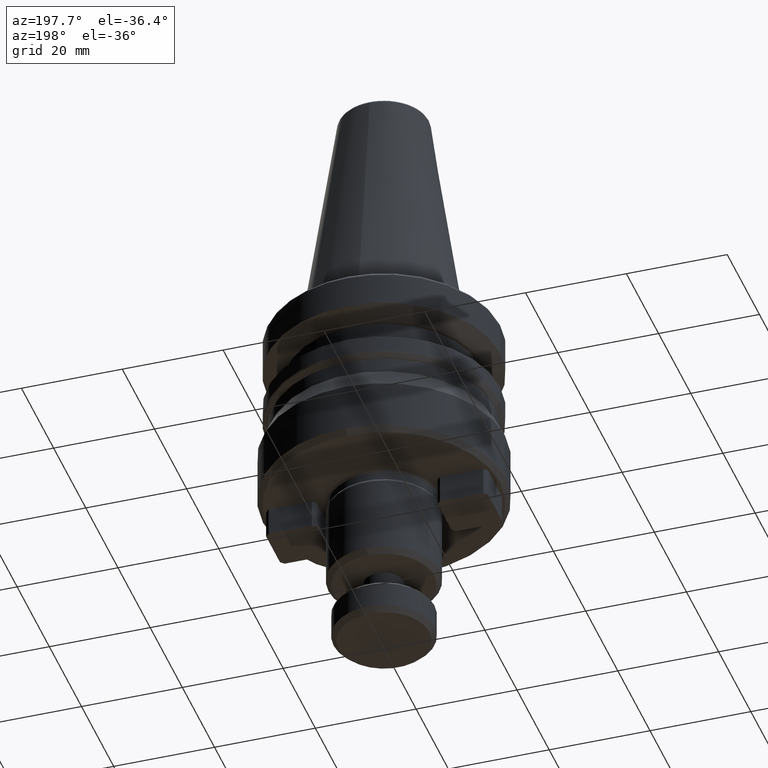
[diagram: clean part render]
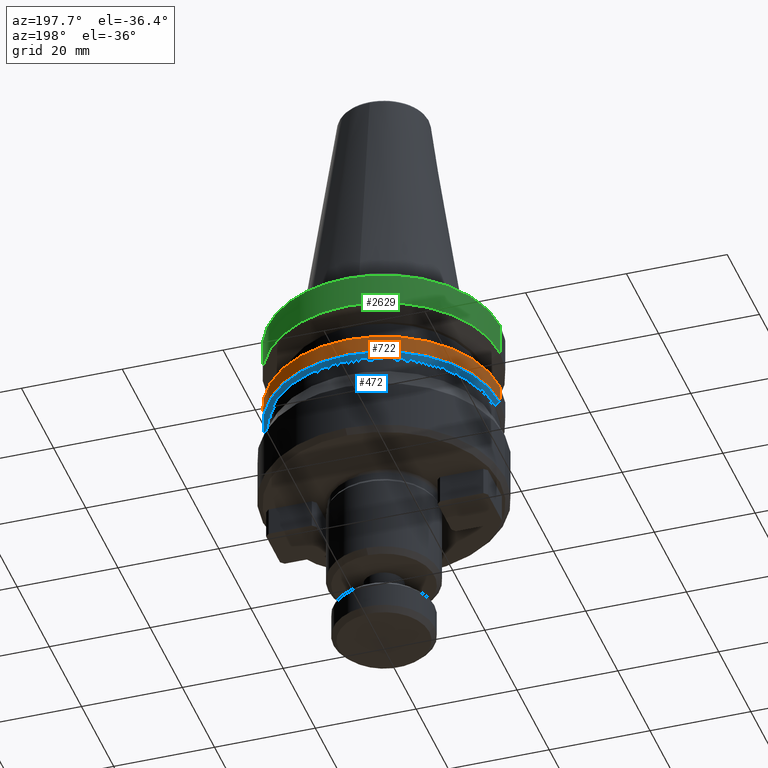
[diagram: same view with three faces highlighted in distinct colors, each labeled with its STEP entity id]
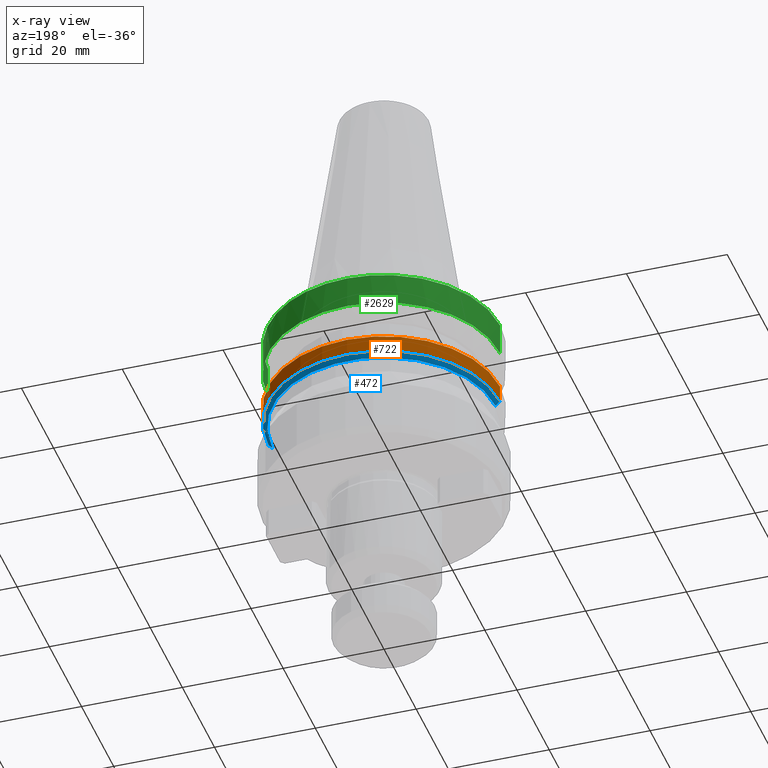
[diagram: x-ray of the same camera — body ghosted, the three highlighted faces saturated]
A machine part, auxiliary view with three faces highlighted in distinct colors.
The next image is the same camera in x-ray (body ghosted, the three faces saturated) — at least one of them is partly hidden behind the body in this view.
Their STEP definitions:

[orange] entity #722 — the highlighted cylindrical surface (partial cylindrical patch) has radius 23 mm, axis along (0, -0, 1).
#74 = CARTESIAN_POINT ( 'NONE',  ( -23.00000000001359600, -3.538034141889927200E-009, -20.83431457497197300 ) ) ;
#195 = AXIS2_PLACEMENT_3D ( 'NONE', #1438, #1564, #419 ) ;
#205 = CIRCLE ( 'NONE', #1918, 23.00000000001812600 ) ;
#266 = EDGE_CURVE ( 'NONE', #2651, #488, #2636, .T. ) ;
#419 = DIRECTION ( 'NONE',  ( 1.000000000000000000, 0.0000000000000000000, 0.0000000000000000000 ) ) ;
#453 = DIRECTION ( 'NONE',  ( -0.0000000000000000000, -0.0000000000000000000, -1.000000000000000000 ) ) ;
#488 = VERTEX_POINT ( 'NONE', #1235 ) ;
#569 = EDGE_CURVE ( 'NONE', #1333, #488, #1978, .T. ) ;
#722 = ADVANCED_FACE ( 'NONE', ( #906 ), #2887, .T. ) ;
#766 = DIRECTION ( 'NONE',  ( 0.0000000000000000000, -0.0000000000000000000, 1.000000000000000000 ) ) ;
#805 = LINE ( 'NONE', #2751, #2867 ) ;
#872 = VECTOR ( 'NONE', #1865, 1000.000000000000000 ) ;
#906 = FACE_OUTER_BOUND ( 'NONE', #2833, .T. ) ;
#1235 = CARTESIAN_POINT ( 'NONE',  ( -23.00000000000000000, 2.816687638038912400E-015, -17.57145135417817600 ) ) ;
#1272 = ORIENTED_EDGE ( 'NONE', *, *, #1757, .F. ) ;
#1274 = CARTESIAN_POINT ( 'NONE',  ( 23.00000000000000000, 0.0000000000000000000, -17.57145135417817600 ) ) ;
#1333 = VERTEX_POINT ( 'NONE', #74 ) ;
#1346 = ORIENTED_EDGE ( 'NONE', *, *, #266, .F. ) ;
#1438 = CARTESIAN_POINT ( 'NONE',  ( 0.0000000000000000000, 0.0000000000000000000, -17.57145135417817600 ) ) ;
#1564 = DIRECTION ( 'NONE',  ( -0.0000000000000000000, -0.0000000000000000000, 1.000000000000000000 ) ) ;
#1598 = CARTESIAN_POINT ( 'NONE',  ( 0.0000000000000000000, 0.0000000000000000000, -20.83431457497091800 ) ) ;
#1671 = EDGE_CURVE ( 'NONE', #2362, #2651, #805, .T. ) ;
#1740 = CARTESIAN_POINT ( 'NONE',  ( 23.00000000001359600, -1.032626726930429800E-009, -20.83431457497249900 ) ) ;
#1757 = EDGE_CURVE ( 'NONE', #1333, #2362, #205, .T. ) ;
#1865 = DIRECTION ( 'NONE',  ( 0.0000000000000000000, -0.0000000000000000000, 1.000000000000000000 ) ) ;
#1869 = CARTESIAN_POINT ( 'NONE',  ( -23.00000000000000000, 2.816687638038912400E-015, -20.83431457500000100 ) ) ;
#1918 = AXIS2_PLACEMENT_3D ( 'NONE', #1598, #453, #2611 ) ;
#1978 = LINE ( 'NONE', #1869, #872 ) ;
#2012 = DIRECTION ( 'NONE',  ( 0.0000000000000000000, -0.0000000000000000000, 1.000000000000000000 ) ) ;
#2014 = DIRECTION ( 'NONE',  ( 1.000000000000000000, 0.0000000000000000000, 0.0000000000000000000 ) ) ;
#2021 = CARTESIAN_POINT ( 'NONE',  ( 0.0000000000000000000, 0.0000000000000000000, -20.83431457500000100 ) ) ;
#2293 = ORIENTED_EDGE ( 'NONE', *, *, #1671, .F. ) ;
#2362 = VERTEX_POINT ( 'NONE', #1740 ) ;
#2452 = AXIS2_PLACEMENT_3D ( 'NONE', #2021, #2012, #2014 ) ;
#2611 = DIRECTION ( 'NONE',  ( -1.000000000000000000, 0.0000000000000000000, 0.0000000000000000000 ) ) ;
#2636 = CIRCLE ( 'NONE', #195, 23.00000000000000000 ) ;
#2651 = VERTEX_POINT ( 'NONE', #1274 ) ;
#2751 = CARTESIAN_POINT ( 'NONE',  ( 23.00000000000000000, 0.0000000000000000000, -20.83431457500000100 ) ) ;
#2833 = EDGE_LOOP ( 'NONE', ( #1272, #2969, #1346, #2293 ) ) ;
#2867 = VECTOR ( 'NONE', #766, 1000.000000000000000 ) ;
#2887 = CYLINDRICAL_SURFACE ( 'NONE', #2452, 23.00000000000000000 ) ;
#2969 = ORIENTED_EDGE ( 'NONE', *, *, #569, .T. ) ;

[blue] entity #472 — the highlighted conical surface has half-angle 45 deg.
#76 = AXIS2_PLACEMENT_3D ( 'NONE', #1589, #1583, #1575 ) ;
#111 = CARTESIAN_POINT ( 'NONE',  ( -22.11715728716628200, -3.402228591483099100E-009, -21.88284271275452000 ) ) ;
#120 = CARTESIAN_POINT ( 'NONE',  ( -22.88284271218569900, -7.040024241612388600E-009, -21.11715728778790400 ) ) ;
#219 = EDGE_CURVE ( 'NONE', #1303, #1247, #2246, .T. ) ;
#363 = DIRECTION ( 'NONE',  ( 1.000000000000000000, 0.0000000000000000000, 0.0000000000000000000 ) ) ;
#390 = CIRCLE ( 'NONE', #2964, 22.88284271199999900 ) ;
#472 = ADVANCED_FACE ( 'NONE', ( #1410 ), #1336, .T. ) ;
#675 = CARTESIAN_POINT ( 'NONE',  ( 0.0000000000000000000, 0.0000000000000000000, -21.88284271199999900 ) ) ;
#1247 = VERTEX_POINT ( 'NONE', #120 ) ;
#1253 = ORIENTED_EDGE ( 'NONE', *, *, #1411, .F. ) ;
#1303 = VERTEX_POINT ( 'NONE', #111 ) ;
#1336 = CONICAL_SURFACE ( 'NONE', #1724, 22.11715728800000500, 0.7853981633974482800 ) ;
#1410 = FACE_OUTER_BOUND ( 'NONE', #1816, .T. ) ;
#1411 = EDGE_CURVE ( 'NONE', #1672, #1247, #390, .T. ) ;
#1450 = DIRECTION ( 'NONE',  ( 0.0000000000000000000, -0.0000000000000000000, 1.000000000000000000 ) ) ;
#1505 = CARTESIAN_POINT ( 'NONE',  ( -22.11715728800000500, 2.708570587898775900E-015, -21.88284271199999900 ) ) ;
#1549 = DIRECTION ( 'NONE',  ( -0.7071067811865474600, 8.659560562354931600E-017, 0.7071067811865475700 ) ) ;
#1575 = DIRECTION ( 'NONE',  ( -1.000000000000000000, 0.0000000000000000000, 0.0000000000000000000 ) ) ;
#1577 = CARTESIAN_POINT ( 'NONE',  ( 0.0000000000000000000, 0.0000000000000000000, -21.11715728800000800 ) ) ;
#1583 = DIRECTION ( 'NONE',  ( -0.0000000000000000000, 0.0000000000000000000, -1.000000000000000000 ) ) ;
#1589 = CARTESIAN_POINT ( 'NONE',  ( 0.0000000000000000000, 0.0000000000000000000, -21.88284271274058000 ) ) ;
#1672 = VERTEX_POINT ( 'NONE', #2914 ) ;
#1724 = AXIS2_PLACEMENT_3D ( 'NONE', #675, #1450, #363 ) ;
#1812 = ORIENTED_EDGE ( 'NONE', *, *, #219, .T. ) ;
#1816 = EDGE_LOOP ( 'NONE', ( #3226, #1812, #1253, #1940 ) ) ;
#1940 = ORIENTED_EDGE ( 'NONE', *, *, #2226, .F. ) ;
#1995 = DIRECTION ( 'NONE',  ( 0.7071067811865474600, 0.0000000000000000000, 0.7071067811865475700 ) ) ;
#2034 = CIRCLE ( 'NONE', #76, 22.11715728715382300 ) ;
#2062 = CARTESIAN_POINT ( 'NONE',  ( 22.11715728800000500, 0.0000000000000000000, -21.88284271199999900 ) ) ;
#2070 = CARTESIAN_POINT ( 'NONE',  ( 22.11715728716590600, -9.929899016735384500E-010, -21.88284271275489300 ) ) ;
#2196 = VERTEX_POINT ( 'NONE', #2070 ) ;
#2226 = EDGE_CURVE ( 'NONE', #2196, #1672, #2688, .T. ) ;
#2246 = LINE ( 'NONE', #1505, #2522 ) ;
#2295 = VECTOR ( 'NONE', #1995, 1000.000000000000000 ) ;
#2420 = EDGE_CURVE ( 'NONE', #1303, #2196, #2034, .T. ) ;
#2430 = DIRECTION ( 'NONE',  ( 0.0000000000000000000, 0.0000000000000000000, 1.000000000000000000 ) ) ;
#2522 = VECTOR ( 'NONE', #1549, 1000.000000000000000 ) ;
#2688 = LINE ( 'NONE', #2062, #2295 ) ;
#2914 = CARTESIAN_POINT ( 'NONE',  ( 22.88284271218569900, -2.054733475874469600E-009, -21.11715728778790400 ) ) ;
#2928 = DIRECTION ( 'NONE',  ( 1.000000000000000000, 0.0000000000000000000, 1.516178298133474600E-016 ) ) ;
#2964 = AXIS2_PLACEMENT_3D ( 'NONE', #1577, #2430, #2928 ) ;
#3226 = ORIENTED_EDGE ( 'NONE', *, *, #2420, .F. ) ;

[green] entity #2629 — the highlighted cylindrical surface (partial cylindrical patch) has radius 23 mm, axis along (0, -0, 1).
#101 = CIRCLE ( 'NONE', #1120, 23.00000000000000000 ) ;
#148 = EDGE_CURVE ( 'NONE', #1435, #968, #2176, .T. ) ;
#163 = VECTOR ( 'NONE', #3098, 1000.000000000000000 ) ;
#245 = ORIENTED_EDGE ( 'NONE', *, *, #1692, .T. ) ;
#337 = AXIS2_PLACEMENT_3D ( 'NONE', #1316, #1278, #1280 ) ;
#380 = EDGE_CURVE ( 'NONE', #2180, #2050, #101, .T. ) ;
#543 = DIRECTION ( 'NONE',  ( 1.000000000000000000, 0.0000000000000000000, 0.0000000000000000000 ) ) ;
#580 = CARTESIAN_POINT ( 'NONE',  ( 0.0000000000000000000, 0.0000000000000000000, -9.634015284669326100 ) ) ;
#594 = EDGE_CURVE ( 'NONE', #889, #1435, #2975, .T. ) ;
#606 = AXIS2_PLACEMENT_3D ( 'NONE', #1933, #1938, #1943 ) ;
#682 = ORIENTED_EDGE ( 'NONE', *, *, #380, .T. ) ;
#755 = DIRECTION ( 'NONE',  ( 0.0000000000000000000, 0.0000000000000000000, 1.000000000000000000 ) ) ;
#811 = LINE ( 'NONE', #2052, #163 ) ;
#852 = CIRCLE ( 'NONE', #1163, 23.00000000000000000 ) ;
#889 = VERTEX_POINT ( 'NONE', #2694 ) ;
#968 = VERTEX_POINT ( 'NONE', #2916 ) ;
#1094 = DIRECTION ( 'NONE',  ( 0.0000000000000000000, -0.0000000000000000000, 1.000000000000000000 ) ) ;
#1120 = AXIS2_PLACEMENT_3D ( 'NONE', #580, #1717, #1537 ) ;
#1163 = AXIS2_PLACEMENT_3D ( 'NONE', #2177, #755, #1833 ) ;
#1278 = DIRECTION ( 'NONE',  ( 0.0000000000000000000, -0.0000000000000000000, 1.000000000000000000 ) ) ;
#1280 = DIRECTION ( 'NONE',  ( 1.000000000000000000, 0.0000000000000000000, 0.0000000000000000000 ) ) ;
#1316 = CARTESIAN_POINT ( 'NONE',  ( 0.0000000000000000000, 0.0000000000000000000, -9.598962634999999500 ) ) ;
#1435 = VERTEX_POINT ( 'NONE', #1971 ) ;
#1513 = ORIENTED_EDGE ( 'NONE', *, *, #3178, .F. ) ;
#1537 = DIRECTION ( 'NONE',  ( 1.000000000000000000, 0.0000000000000000000, 0.0000000000000000000 ) ) ;
#1612 = EDGE_CURVE ( 'NONE', #2180, #889, #3310, .T. ) ;
#1635 = CARTESIAN_POINT ( 'NONE',  ( 0.0000000000000000000, 0.0000000000000000000, -3.165685424999995100 ) ) ;
#1639 = DIRECTION ( 'NONE',  ( -0.0000000000000000000, -0.0000000000000000000, 1.000000000000000000 ) ) ;
#1656 = CYLINDRICAL_SURFACE ( 'NONE', #337, 23.00000000000000000 ) ;
#1666 = FACE_OUTER_BOUND ( 'NONE', #2982, .T. ) ;
#1692 = EDGE_CURVE ( 'NONE', #2050, #1775, #811, .T. ) ;
#1713 = CARTESIAN_POINT ( 'NONE',  ( 23.00000000000000000, 0.0000000000000000000, -9.598962634999999500 ) ) ;
#1717 = DIRECTION ( 'NONE',  ( -0.0000000000000000000, -0.0000000000000000000, 1.000000000000000000 ) ) ;
#1775 = VERTEX_POINT ( 'NONE', #3376 ) ;
#1833 = DIRECTION ( 'NONE',  ( 1.000000000000000000, 0.0000000000000000000, -2.074125895189660600E-016 ) ) ;
#1933 = CARTESIAN_POINT ( 'NONE',  ( 0.0000000000000000000, 0.0000000000000000000, -3.165685424999995100 ) ) ;
#1938 = DIRECTION ( 'NONE',  ( 0.0000000000000000000, 0.0000000000000000000, 1.000000000000000000 ) ) ;
#1943 = DIRECTION ( 'NONE',  ( 1.000000000000000000, 0.0000000000000000000, -2.074125895189660600E-016 ) ) ;
#1971 = CARTESIAN_POINT ( 'NONE',  ( 8.554650471698556300, 21.34989356669855800, -3.165685424485280100 ) ) ;
#2000 = AXIS2_PLACEMENT_3D ( 'NONE', #1635, #1639, #543 ) ;
#2050 = VERTEX_POINT ( 'NONE', #2301 ) ;
#2052 = CARTESIAN_POINT ( 'NONE',  ( -23.00000000000000000, 2.816687638038912400E-015, -9.598962634999999500 ) ) ;
#2067 = VECTOR ( 'NONE', #1094, 1000.000000000000000 ) ;
#2133 = CARTESIAN_POINT ( 'NONE',  ( 23.00000000000000000, 0.0000000000000000000, -9.634015284669326100 ) ) ;
#2173 = ORIENTED_EDGE ( 'NONE', *, *, #594, .F. ) ;
#2176 = CIRCLE ( 'NONE', #2000, 23.00000000000000000 ) ;
#2177 = CARTESIAN_POINT ( 'NONE',  ( 0.0000000000000000000, 0.0000000000000000000, -3.165685424999995100 ) ) ;
#2180 = VERTEX_POINT ( 'NONE', #2133 ) ;
#2211 = ORIENTED_EDGE ( 'NONE', *, *, #1612, .F. ) ;
#2301 = CARTESIAN_POINT ( 'NONE',  ( -23.00000000000000000, 2.816687638038912400E-015, -9.634015284669326100 ) ) ;
#2341 = ORIENTED_EDGE ( 'NONE', *, *, #148, .F. ) ;
#2629 = ADVANCED_FACE ( 'NONE', ( #1666 ), #1656, .T. ) ;
#2694 = CARTESIAN_POINT ( 'NONE',  ( 23.00000000000453000, -2.065253453860859700E-009, -3.165685425006475700 ) ) ;
#2916 = CARTESIAN_POINT ( 'NONE',  ( -8.692417140434335100, 21.29417489019805400, -3.165685424550174000 ) ) ;
#2975 = CIRCLE ( 'NONE', #606, 23.00000000000000000 ) ;
#2982 = EDGE_LOOP ( 'NONE', ( #682, #245, #1513, #2341, #2173, #2211 ) ) ;
#3098 = DIRECTION ( 'NONE',  ( 0.0000000000000000000, -0.0000000000000000000, 1.000000000000000000 ) ) ;
#3178 = EDGE_CURVE ( 'NONE', #968, #1775, #852, .T. ) ;
#3310 = LINE ( 'NONE', #1713, #2067 ) ;
#3376 = CARTESIAN_POINT ( 'NONE',  ( -23.00000000000000000, 2.816687638038912400E-015, -3.165685424999995100 ) ) ;